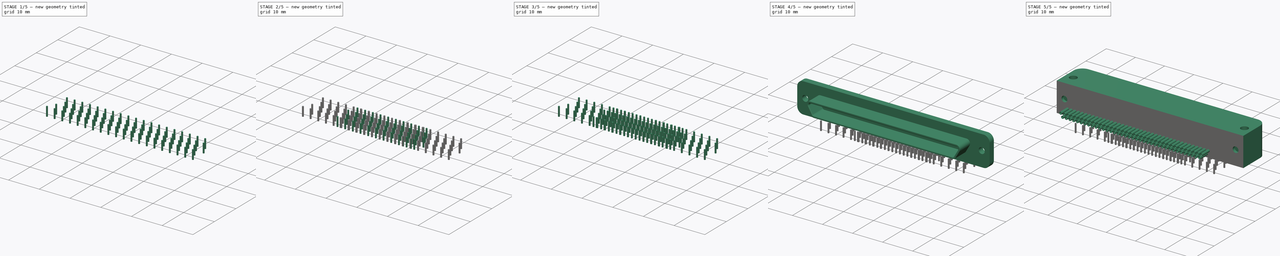
[diagram: build sequence overview — one tinted view per stage of 5, left to right]
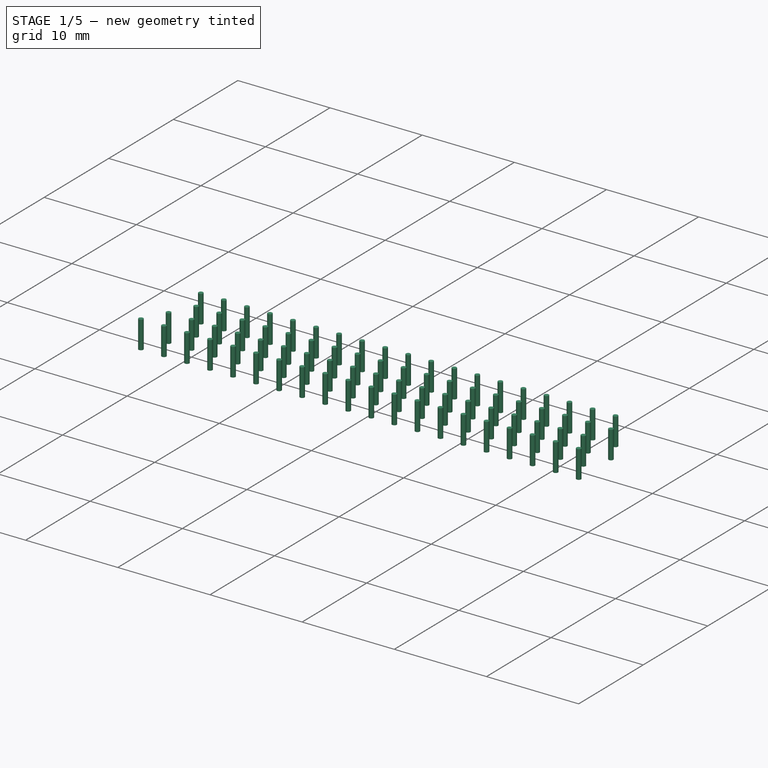
[diagram: stage 1 of 5 — iso view after this stage's code; geometry added in this stage tinted green]
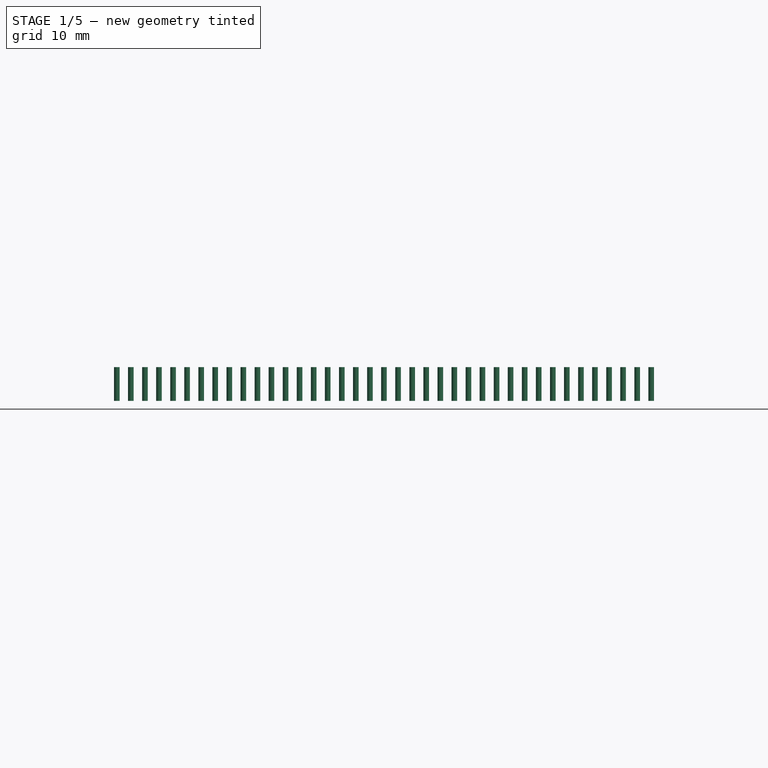
[diagram: stage 1 of 5 — front view after this stage's code; geometry added in this stage tinted green]
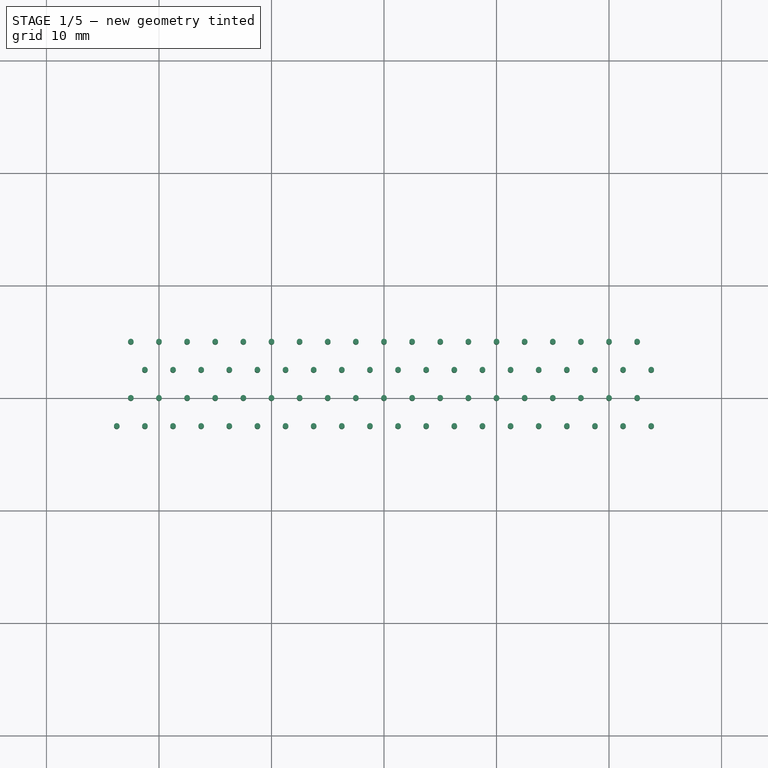
[diagram: stage 1 of 5 — top view after this stage's code; geometry added in this stage tinted green]
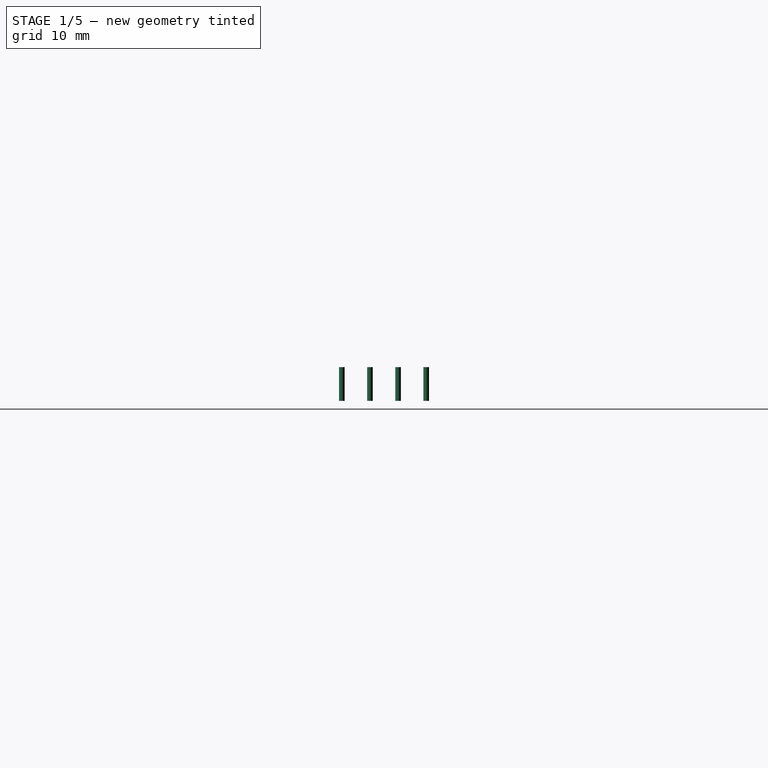
[diagram: stage 1 of 5 — right view after this stage's code; geometry added in this stage tinted green]
FCSTD DOCUMENT  (FreeCAD 1.0R38806 (Git))
Label: microD
License: All rights reserved
LicenseURL: http://en.wikipedia.org/wiki/All_rights_reserved
objects: Part::FeaturePython×19, Sketcher::SketchObject×10, Part::Part2DObjectPython×8, PartDesign::Pad×5, PartDesign::ShapeBinder×5, PartDesign::Pocket×5, PartDesign::Body×4, PartDesign::Fillet×2, PartDesign::Chamfer×2, Spreadsheet::Sheet×1, Part::Offset2D×1
note: 89 computed .brp shape members not serialized (recipe doc carries the construction recipe); baked Part::Feature solids carry a one-line shape summary decoded from their .brp

FEATURE [Sketcher::SketchObject] Sketch
  ArcFitTolerance = 0
  AttachmentSupport = -> [XY_Plane]
  FullyConstrained = true
  MakeInternals = false
  MapMode = 5
  expr: Constraints[8] = <<param>>.dimA
  expr: Constraints[9] = <<param>>.dimC - 2 mm - 4.9 mm
  sketch-geometry (4):
    g0: LineSegment StartX=-32 StartY=11.3 StartZ=0 EndX=32 EndY=11.3 EndZ=0
    g1: LineSegment StartX=32 StartY=11.3 StartZ=0 EndX=32 EndY=0 EndZ=0
    g2: LineSegment StartX=32 StartY=0 StartZ=0 EndX=-32 EndY=0 EndZ=0
    g3: LineSegment StartX=-32 StartY=0 StartZ=0 EndX=-32 EndY=11.3 EndZ=0
  constraints (11):
    c: Coincident(g0,g1)
    c: Coincident(g1,g2)
    c: Coincident(g2,g3)
    c: Coincident(g3,g0)
    c: Horizontal(g2)
    c: Vertical(g1)
    c: Vertical(g3)
    c: Symmetric(g0,g0,g-2)
    c: Distance(g2) = 64
    c: Distance(g3) = 11.3
    c: PointOnObject(g-1,g2)
FEATURE [PartDesign::Pad] Pad
  Direction = (0,0,1)
  Length = 10
  Length2 = 10
  Profile = -> Sketch
  ReferenceAxis = -> Sketch [N_Axis]
  Suppressed = false
  Type = 0
FEATURE [Sketcher::SketchObject] Sketch004
  ArcFitTolerance = 0
  AttachmentSupport = -> [Pad]
  ExternalGeometry = -> [Pad]
  FullyConstrained = true
  MakeInternals = false
  MapMode = 5
  Placement = pos=(0,0,0) rot=(1,0,0;1.5708rad)
  expr: Constraints[5] = <<param>>.dimF
  sketch-geometry (4):
    g0: Circle CenterX=29.35 CenterY=5 CenterZ=0 NormalX=0 NormalY=0 NormalZ=1 AngleXU=0 Radius=1
    g1: Circle CenterX=-29.35 CenterY=5 CenterZ=0 NormalX=0 NormalY=0 NormalZ=1 AngleXU=0 Radius=1
    g2: LineSegment [constr] StartX=-29.35 StartY=5 StartZ=0 EndX=29.35 EndY=5 EndZ=0
    g3: GeomPoint [constr] X=0 Y=10 Z=0
  constraints (8):
    c: Equal(g0,g1)
    c: Diameter(g0) = 2
    c: Symmetric(g1,g0,g-2)
    c: Coincident(g2,g1)
    c: Coincident(g2,g0)
    c: Distance(g2) = 58.7
    c: PointOnObject(g3,g-3)
    c: Symmetric(g3,g-1,g2)
FEATURE [PartDesign::Pocket] Pocket
  BaseFeature = -> Pad
  Direction = (0,1,-2e-16)
  Length = 1
  Length2 = 5
  Profile = -> Sketch004
  ReferenceAxis = -> Sketch004 [N_Axis]
  Suppressed = false
  Type = 0
FEATURE [Sketcher::SketchObject] Sketch006
  ArcFitTolerance = 0
  AttachmentSupport = -> [Pocket]
  FullyConstrained = true
  MakeInternals = false
  MapMode = 5
  Placement = pos=(0,0,0) rot=(1,0,0;3.14159rad)
  expr: Constraints[4] = <<param>>.MHSpacing
  expr: Constraints[7] = -<<param>>.MHOffset
  sketch-geometry (3):
    g0: Circle CenterX=29.35 CenterY=-4.35 CenterZ=0 NormalX=0 NormalY=0 NormalZ=1 AngleXU=0 Radius=1.25
    g1: Circle CenterX=-29.35 CenterY=-4.35 CenterZ=0 NormalX=0 NormalY=0 NormalZ=1 AngleXU=0 Radius=1.25
    g2: LineSegment [constr] StartX=-29.35 StartY=-4.35 StartZ=0 EndX=29.35 EndY=-4.35 EndZ=0
  constraints (8):
    c: Coincident(g2,g1)
    c: Coincident(g2,g0)
    c: Diameter(g0) = 2.5
    c: Equal(g0,g1)
    c: Distance(g2) = 58.7
    c: Distance(g-1,g2) = 4.35
    c: Horizontal(g2)
    c: DistanceX(g-2,g1) = -29.35
FEATURE [PartDesign::Pocket] Pocket002
  BaseFeature = -> Pocket
  Direction = (0,0,1)
  Length = 5
  Length2 = 5
  Profile = -> Sketch006
  ReferenceAxis = -> Sketch006 [N_Axis]
  Suppressed = false
  Type = 1
FEATURE [PartDesign::ShapeBinder] ShapeBinder002
  Support = -> [Pocket002]
  TraceSupport = false
FEATURE [Sketcher::SketchObject] Sketch007
  ArcFitTolerance = 0
  AttachmentSupport = -> [ShapeBinder002]
  ExternalGeometry = -> [ShapeBinder002]
  FullyConstrained = false
  MakeInternals = false
  MapMode = 5
  Placement = pos=(0,0,0) rot=(1,0,0;3.14159rad)
  sketch-geometry (2):
    g0: LineSegment [constr] StartX=-14.17 StartY=-4.35 StartZ=0 EndX=14.15 EndY=-4.35 EndZ=0
    g1: Circle CenterX=0 CenterY=-3.84 CenterZ=0 NormalX=0 NormalY=0 NormalZ=1 AngleXU=0 Radius=0.25
  constraints (3):
    c: PointOnObject(g1,g-2)
    c: Diameter(g1) = 0.5
    c: Distance(g1,g0) = 0.51
FEATURE [PartDesign::Pad] Pad003
  Direction = (0,0,-1)
  Length = 3
  Length2 = 10
  Profile = -> Sketch007
  ReferenceAxis = -> Sketch007 [N_Axis]
  Suppressed = false
  Type = 0
FEATURE [Part::Part2DObjectPython] Wire006  label="w_43p"  # Draft 2D object (typed FeaturePython)
  Area = 0
  ChamferSize = 0
  Closed = false
  End = (11.25,5,0)
  FilletRadius = 0
  Length = 171.631
  MakeFace = true
  Points = (43) [(-12.5,-2.5,0),(-10,-2.5,0),(-7.5,-2.5,0),(-5,-2.5,0),(-2.5,-2.5,0),(0,-2.5,0),(2.5,-2.5,0),(5,-2.5,0),(7.5,-2.5,0),(10,-2.5,0),(12.5,-2.5,0),+32 more]
  Start = (-12.5,-2.5,0)
  Subdivisions = 0
FEATURE [Part::FeaturePython] Clone007  label="solder_pin_43p"  # Draft clone (typed FeaturePython)
  AttacherType = Attacher::AttachEngine3D
  Fuse = false
  Objects = -> [Body002]
  Placement = pos=(0,-3.84,0) rot=(0,0,1;0rad)
  Scale = (1,1,1)
FEATURE [Part::Part2DObjectPython] Wire007  label="w_77p"  # Draft 2D object (typed FeaturePython)
  Area = 0
  ChamferSize = 0
  Closed = false
  End = (22.5,5,0)
  FilletRadius = 0
  Length = 318.956
  MakeFace = true
  Points = (77) [(-23.75,-2.5,0),(-21.25,-2.5,0),(-18.75,-2.5,0),(-16.25,-2.5,0),(-13.75,-2.5,0),(-11.25,-2.5,0),(-8.75,-2.5,0),(-6.25,-2.5,0),(-3.75,-2.5,0),+68 more]
  Start = (-23.75,-2.5,0)
  Subdivisions = 0
FEATURE [Part::FeaturePython] Clone008  label="solder_pin_77p"  # Draft clone (typed FeaturePython)
  AttacherType = Attacher::AttachEngine3D
  Fuse = false
  Objects = -> [Body002]
  Placement = pos=(0,-3.84,0) rot=(0,0,1;0rad)
  Scale = (1,1,1)
FEATURE [Part::FeaturePython] PointArray007  label="array_solder_77p"  # Draft array (typed FeaturePython)
  AlwaysSyncPlacement = false
  Base = -> Clone008
  Count = 77
  ExpandArray = false
  Fuse = false
  Placement = pos=(0,-3.84,0) rot=(0,0,1;0rad)
  PlacementList = 77 placements: [(-23.75,-2.5,0),(-21.25,-2.5,0),(-18.75,-2.5,0),(-16.25,-2.5,0),(-13.75,-2.5,0),(-11.25,-2.5,0),(-8.75,-2.5,0),(-6.25,-2.5,0),(-3.75,-2.5,0),(-1.25,-2.5,0),(1.25,-2.5,0),(3.75,-2.5,0),(6.25,-2.5,0),(8.75,-2.5,0),(11.25,-2.5,0),(13.75,-2.5,0),(16.25,-2.5,0),(18.75,-2.5,0),(21.25,-2.5,0),(23.75,-2.5,0),(-22.5,0,0),(-20,0,0),(-17.5,0,0),(-15,0,0),(-12.5,0,0),(-10,0,0),(-7.5,0,0),(-5,0,0),(-2.5,0,0),+48 more]
  PointObject = -> Wire007
  ScaleList = (77) [(1,1,1),(1,1,1),(1,1,1),(1,1,1),(1,1,1),(1,1,1),(1,1,1),(1,1,1),(1,1,1),(1,1,1),(1,1,1),(1,1,1),(1,1,1),(1,1,1),(1,1,1),(1,1,1),(1,1,1),(1,1,1),+59 more]
  expr: .Placement.Base.y = <<param>>.Shift
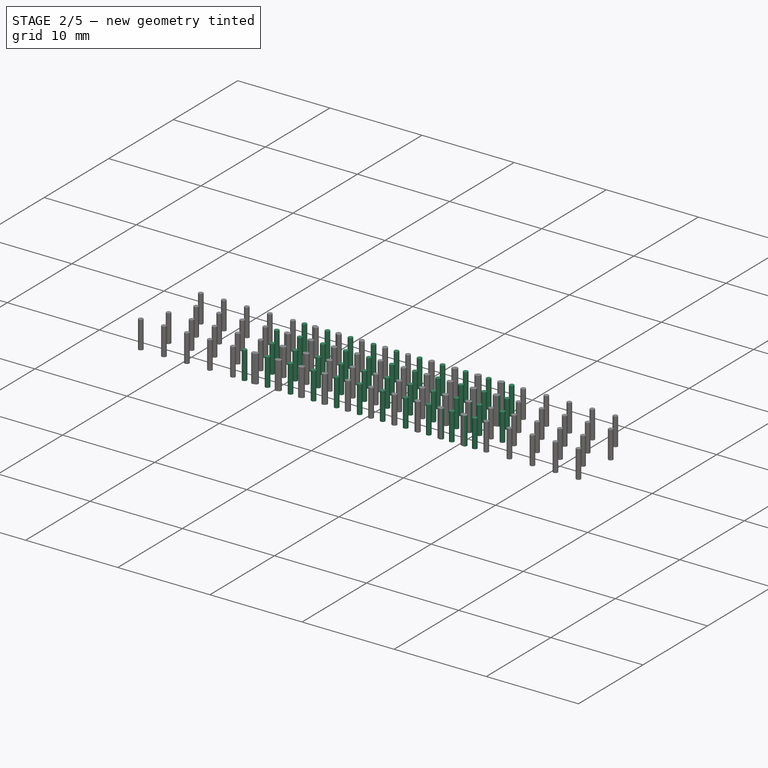
[diagram: stage 2 of 5 — iso view after this stage's code; geometry added in this stage tinted green]
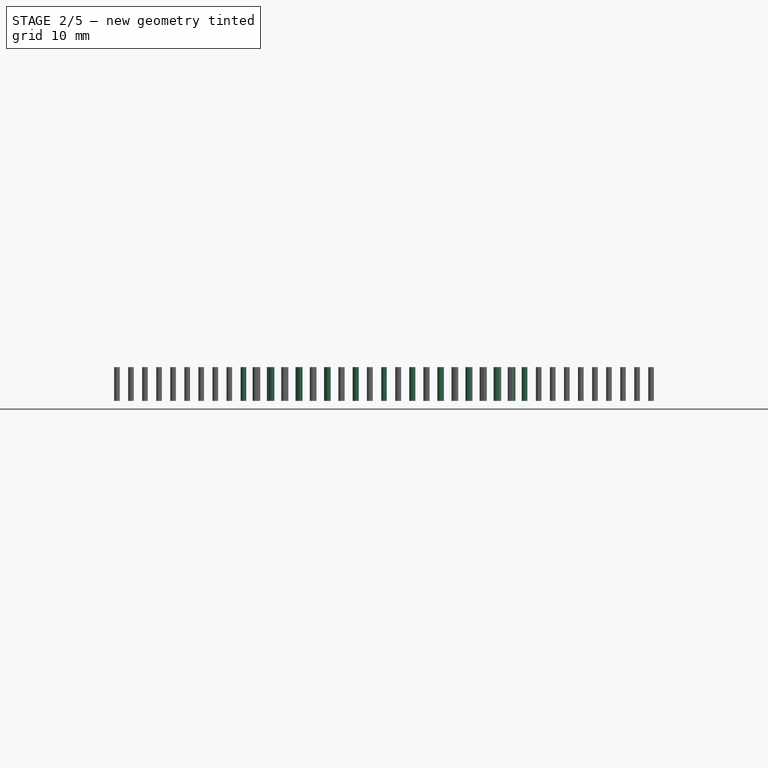
[diagram: stage 2 of 5 — front view after this stage's code; geometry added in this stage tinted green]
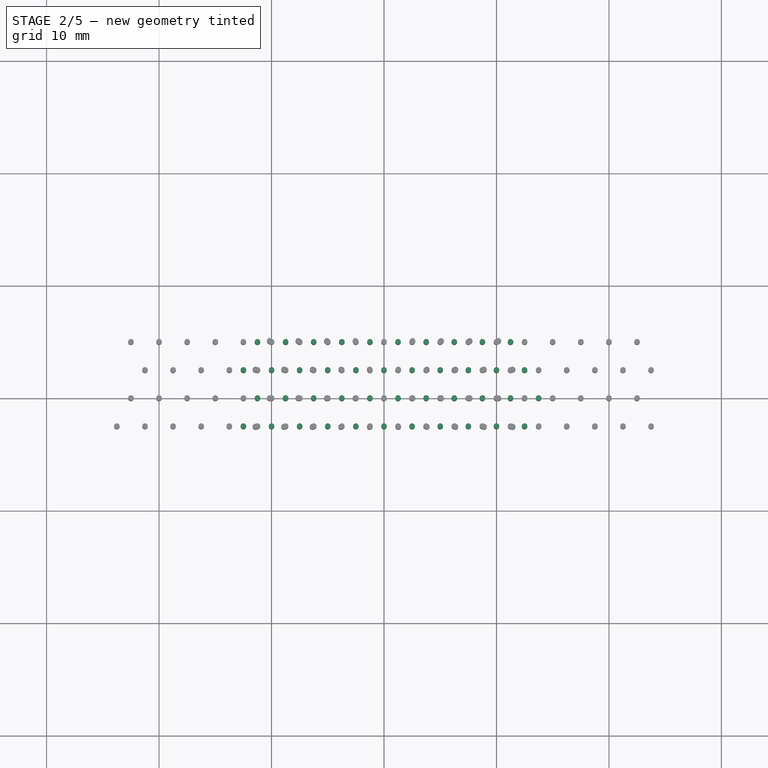
[diagram: stage 2 of 5 — top view after this stage's code; geometry added in this stage tinted green]
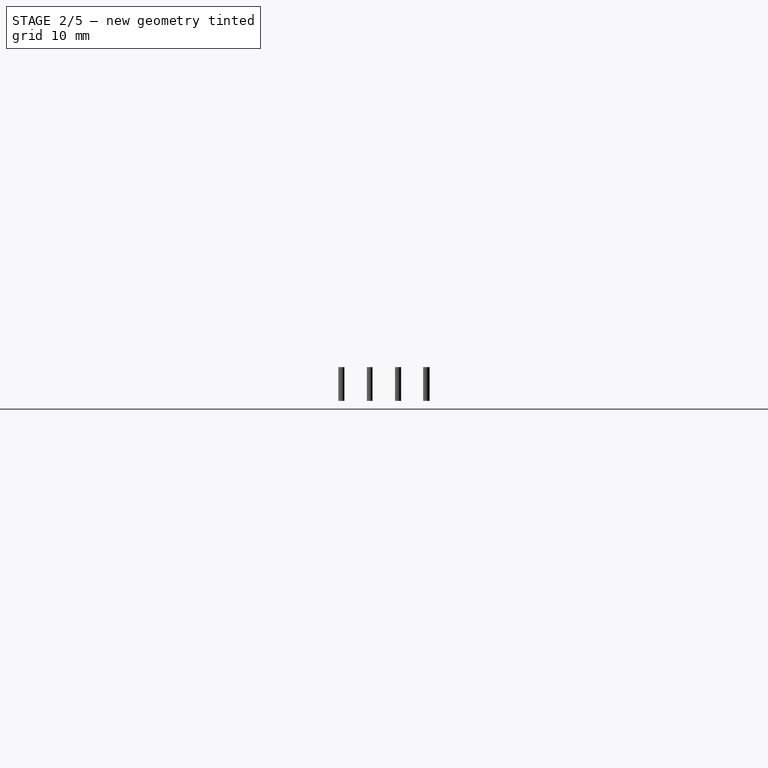
[diagram: stage 2 of 5 — right view after this stage's code; geometry added in this stage tinted green]
FEATURE [Part::Part2DObjectPython] Wire003  label="w_25p"  # Draft 2D object (typed FeaturePython)
  Area = 0
  ChamferSize = 0
  Closed = false
  End = (8.89,2.54,0)
  FilletRadius = 0
  Length = 94.3172
  MakeFace = true
  Points = (25) [(-8.89,-2.54,0),(-6.35,-2.54,0),(-3.81,-2.54,0),(-1.27,-2.54,0),(1.27,-2.54,0),(3.81,-2.54,0),(6.35,-2.54,0),(8.89,-2.54,0),(-10.16,0,0),(-7.62,0,0),+15 more]
  Start = (-8.89,-2.54,0)
  Subdivisions = 0
FEATURE [Part::FeaturePython] Clone004  label="solder_pin_25p"  # Draft clone (typed FeaturePython)
  AttacherType = Attacher::AttachEngine3D
  Fuse = false
  Objects = -> [Body002]
  Placement = pos=(0,-3.84,0) rot=(0,0,1;0rad)
  Scale = (1,1,1)
FEATURE [Part::Part2DObjectPython] Wire004  label="w_31p"  # Draft 2D object (typed FeaturePython)
  Area = 0
  ChamferSize = 0
  Closed = false
  End = (7.62,5.08,0)
  FilletRadius = 0
  Length = 126.261
  MakeFace = true
  Points = (31) [(-8.89,-2.54,0),(-6.35,-2.54,0),(-3.81,-2.54,0),(-1.27,-2.54,0),(1.27,-2.54,0),(3.81,-2.54,0),(6.35,-2.54,0),(8.89,-2.54,0),(-10.16,0,0),(-7.62,0,0),+21 more]
  Start = (-8.89,-2.54,0)
  Subdivisions = 0
FEATURE [Part::FeaturePython] Clone005  label="solder_pin_31p"  # Draft clone (typed FeaturePython)
  AttacherType = Attacher::AttachEngine3D
  Fuse = false
  Objects = -> [Body002]
  Placement = pos=(0,-3.84,0) rot=(0,0,1;0rad)
  Scale = (1,1,1)
FEATURE [Part::FeaturePython] PointArray004  label="array_solder_31p"  # Draft array (typed FeaturePython)
  AlwaysSyncPlacement = false
  Base = -> Clone005
  Count = 31
  ExpandArray = false
  Fuse = false
  Placement = pos=(0,-3.84,0) rot=(0,0,1;0rad)
  PlacementList = 31 placements: [(-8.89,-2.54,0),(-6.35,-2.54,0),(-3.81,-2.54,0),(-1.27,-2.54,0),(1.27,-2.54,0),(3.81,-2.54,0),(6.35,-2.54,0),(8.89,-2.54,0),(-10.16,0,0),(-7.62,0,0),(-5.08,0,0),(-2.54,0,0),(0,0,0),(2.54,0,0),(5.08,0,0),(7.62,0,0),(10.16,0,0),(-8.89,2.54,0),(-6.35,2.54,0),(-3.81,2.54,0),(-1.27,2.54,0),(1.27,2.54,0),(3.81,2.54,0),(6.35,2.54,0),(8.89,2.54,0),(-7.62,5.08,0),(-5.08,5.08,0),(-2.54,5.08,0),+3 more]
  PointObject = -> Wire004
  ScaleList = (31) [(1,1,1),(1,1,1),(1,1,1),(1,1,1),(1,1,1),(1,1,1),(1,1,1),(1,1,1),(1,1,1),(1,1,1),(1,1,1),(1,1,1),(1,1,1),(1,1,1),(1,1,1),(1,1,1),(1,1,1),(1,1,1),+13 more]
  expr: .Placement.Base.y = <<param>>.Shift
FEATURE [Part::Part2DObjectPython] Wire005  label="w_37p"  # Draft 2D object (typed FeaturePython)
  Area = 0
  ChamferSize = 0
  Closed = false
  End = (10.16,5.08,0)
  FilletRadius = 0
  Length = 151.577
  MakeFace = true
  Points = (37) [(-11.43,-2.54,0),(-8.89,-2.54,0),(-6.35,-2.54,0),(-3.81,-2.54,0),(-1.27,-2.54,0),(1.27,-2.54,0),(3.81,-2.54,0),(6.35,-2.54,0),(8.89,-2.54,0),+28 more]
  Start = (-11.43,-2.54,0)
  Subdivisions = 0
FEATURE [Part::FeaturePython] Clone006  label="solder_pin_37p"  # Draft clone (typed FeaturePython)
  AttacherType = Attacher::AttachEngine3D
  Fuse = false
  Objects = -> [Body002]
  Placement = pos=(0,-3.84,0) rot=(0,0,1;0rad)
  Scale = (1,1,1)
FEATURE [Part::FeaturePython] PointArray005  label="array_solder_37p"  # Draft array (typed FeaturePython)
  AlwaysSyncPlacement = false
  Base = -> Clone006
  Count = 37
  ExpandArray = false
  Fuse = false
  Placement = pos=(0,-3.84,0) rot=(0,0,1;0rad)
  PlacementList = 37 placements: [(-11.43,-2.54,0),(-8.89,-2.54,0),(-6.35,-2.54,0),(-3.81,-2.54,0),(-1.27,-2.54,0),(1.27,-2.54,0),(3.81,-2.54,0),(6.35,-2.54,0),(8.89,-2.54,0),(11.43,-2.54,0),(-10.16,0,0),(-7.62,0,0),(-5.08,0,0),(-2.54,0,0),(0,0,0),(2.54,0,0),(5.08,0,0),(7.62,0,0),(10.16,0,0),(-11.43,2.54,0),(-8.89,2.54,0),(-6.35,2.54,0),(-3.81,2.54,0),(-1.27,2.54,0),(1.27,2.54,0),(3.81,2.54,0),(6.35,2.54,0),(8.89,2.54,0),+9 more]
  PointObject = -> Wire005
  ScaleList = (37) [(1,1,1),(1,1,1),(1,1,1),(1,1,1),(1,1,1),(1,1,1),(1,1,1),(1,1,1),(1,1,1),(1,1,1),(1,1,1),(1,1,1),(1,1,1),(1,1,1),(1,1,1),(1,1,1),(1,1,1),(1,1,1),+19 more]
  expr: .Placement.Base.y = <<param>>.Shift
FEATURE [Part::FeaturePython] PointArray006  label="array_solder_43p"  # Draft array (typed FeaturePython)
  AlwaysSyncPlacement = false
  Base = -> Clone007
  Count = 43
  ExpandArray = false
  Fuse = false
  Placement = pos=(0,-3.84,0) rot=(0,0,1;0rad)
  PlacementList = 43 placements: [(-12.5,-2.5,0),(-10,-2.5,0),(-7.5,-2.5,0),(-5,-2.5,0),(-2.5,-2.5,0),(0,-2.5,0),(2.5,-2.5,0),(5,-2.5,0),(7.5,-2.5,0),(10,-2.5,0),(12.5,-2.5,0),(-11.25,0,0),(-8.75,0,0),(-6.25,0,0),(-3.75,0,0),(-1.25,0,0),(1.25,0,0),(3.75,0,0),(6.25,0,0),(8.75,0,0),(11.25,0,0),(13.75,0,0),(-12.5,2.5,0),(-10,2.5,0),(-7.5,2.5,0),(-5,2.5,0),(-2.5,2.5,0),(0,2.5,0),(2.5,2.5,0),(5,2.5,0),(7.5,2.5,0),(10,2.5,0),+11 more]
  PointObject = -> Wire006
  ScaleList = (43) [(1,1,1),(1,1,1),(1,1,1),(1,1,1),(1,1,1),(1,1,1),(1,1,1),(1,1,1),(1,1,1),(1,1,1),(1,1,1),(1,1,1),(1,1,1),(1,1,1),(1,1,1),(1,1,1),(1,1,1),(1,1,1),+25 more]
  expr: .Placement.Base.y = <<param>>.Shift
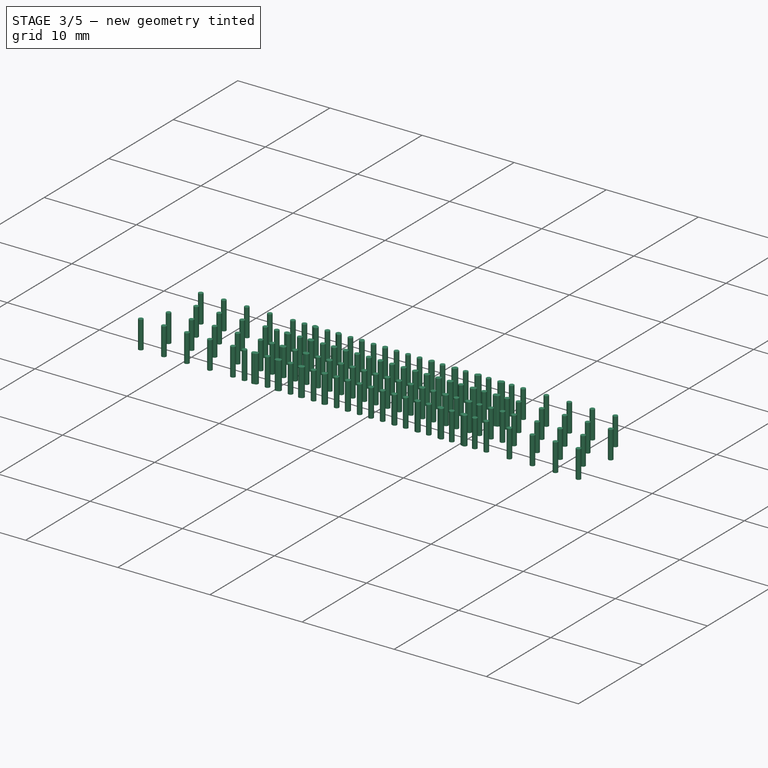
[diagram: stage 3 of 5 — iso view after this stage's code; geometry added in this stage tinted green]
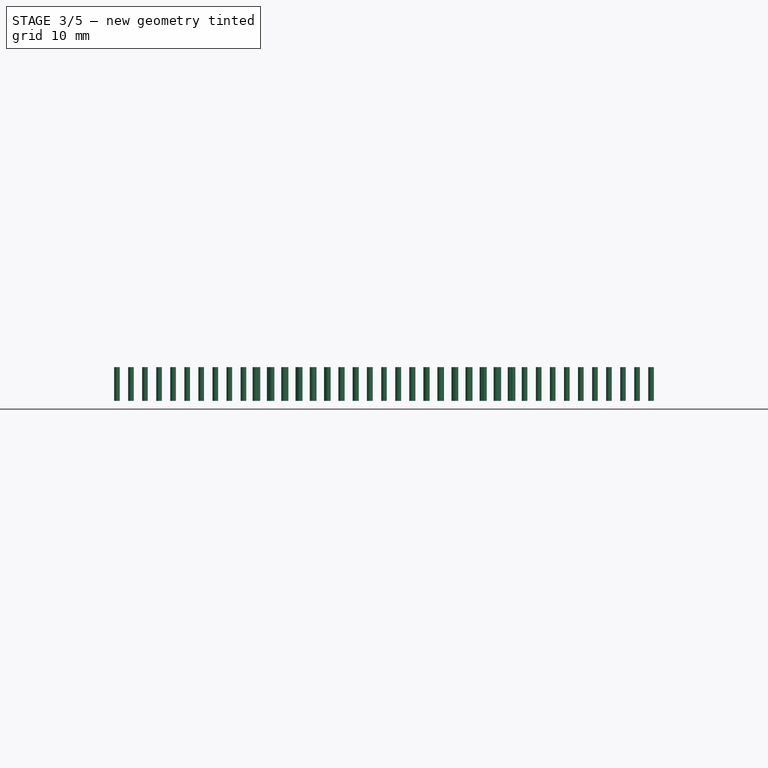
[diagram: stage 3 of 5 — front view after this stage's code; geometry added in this stage tinted green]
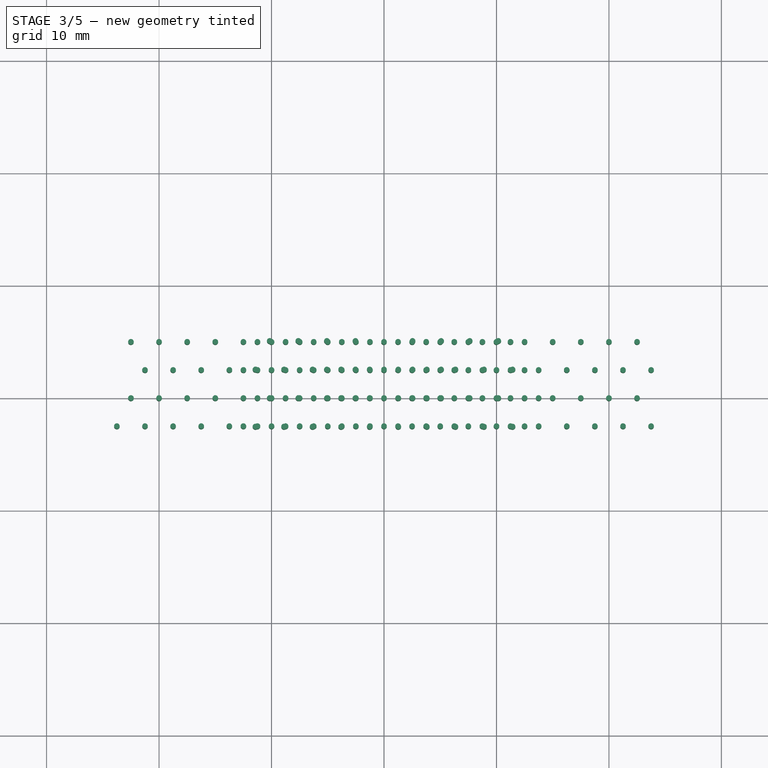
[diagram: stage 3 of 5 — top view after this stage's code; geometry added in this stage tinted green]
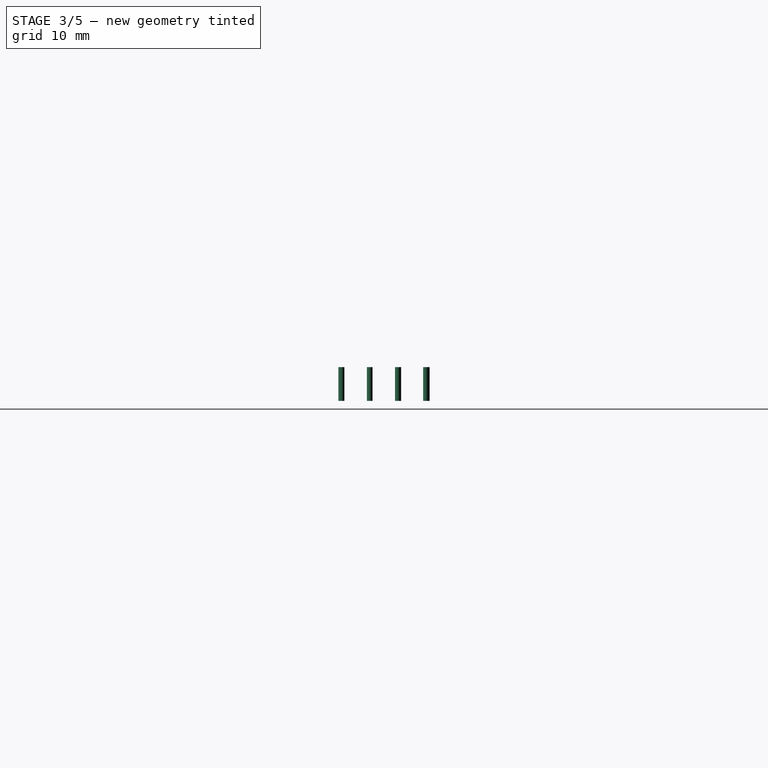
[diagram: stage 3 of 5 — right view after this stage's code; geometry added in this stage tinted green]
FEATURE [Part::FeaturePython] Clone001  label="solder_pin_9p"  # Draft clone (typed FeaturePython)
  AttacherType = Attacher::AttachEngine3D
  Fuse = false
  Objects = -> [Body002]
  Placement = pos=(-3.75,-3.84,0) rot=(0,0,1;0rad)
  Scale = (1,1,1)
  expr: .Placement.Base.x = -<<param>>.FPSpacing * 1.5
  expr: .Placement.Base.y = <<param>>.Shift
FEATURE [Part::Part2DObjectPython] Wire  label="w_9p"  # Draft 2D object (typed FeaturePython)
  Area = 0
  ChamferSize = 0
  Closed = false
  End = (5.08,2.54,0)
  FilletRadius = 0
  Length = 27.0257
  MakeFace = true
  Points = (9) [(-3.81,0,0),(-1.27,0,0),(1.27,0,0),(3.81,0,0),(-5.08,2.54,0),(-2.54,2.54,0),(0,2.54,0),(2.54,2.54,0),(5.08,2.54,0)]
  Start = (-3.81,0,0)
  Subdivisions = 0
FEATURE [Part::FeaturePython] PointArray  label="array_solder_9p"  # Draft array (typed FeaturePython)
  AlwaysSyncPlacement = false
  Base = -> Clone001
  Count = 9
  ExpandArray = false
  Fuse = false
  Placement = pos=(0,-3.84,0) rot=(0,0,1;0rad)
  PlacementList = 9 placements: [(-3.81,0,0),(-1.27,0,0),(1.27,0,0),(3.81,0,0),(-5.08,2.54,0),(-2.54,2.54,0),(0,2.54,0),(2.54,2.54,0),(5.08,2.54,0)]
  PointObject = -> Wire
  ScaleList = (9) [(1,1,1),(1,1,1),(1,1,1),(1,1,1),(1,1,1),(1,1,1),(1,1,1),(1,1,1),(1,1,1)]
  expr: .Placement.Base.y = <<param>>.Shift
FEATURE [Part::Part2DObjectPython] Wire001  label="w_15p"  # Draft 2D object (typed FeaturePython)
  Area = 0
  ChamferSize = 0
  Closed = false
  End = (6.35,2.54,0)
  FilletRadius = 0
  Length = 51.4346
  MakeFace = true
  Points = (15) [(-3.81,-2.54,0),(-1.27,-2.54,0),(1.27,-2.54,0),(3.81,-2.54,0),(-5.08,0,0),(-2.54,0,0),(0,0,0),(2.54,0,0),(5.08,0,0),(-6.35,2.54,0),(-3.81,2.54,0),+4 more]
  Start = (-3.81,-2.54,0)
  Subdivisions = 0
FEATURE [Part::FeaturePython] Clone002  label="solder_pin_15p"  # Draft clone (typed FeaturePython)
  AttacherType = Attacher::AttachEngine3D
  Fuse = false
  Objects = -> [Body002]
  Placement = pos=(0,-3.84,0) rot=(0,0,1;0rad)
  Scale = (1,1,1)
FEATURE [Part::FeaturePython] PointArray001  label="array_solder_15p"  # Draft array (typed FeaturePython)
  AlwaysSyncPlacement = false
  Base = -> Clone002
  Count = 15
  ExpandArray = false
  Fuse = false
  Placement = pos=(0,-3.84,0) rot=(0,0,1;0rad)
  PlacementList = 15 placements: [(-3.81,-2.54,0),(-1.27,-2.54,0),(1.27,-2.54,0),(3.81,-2.54,0),(-5.08,-2.22045e-16,0),(-2.54,0,0),(0,0,0),(2.54,0,0),(5.08,0,0),(-6.35,2.54,0),(-3.81,2.54,0),(-1.27,2.54,0),(1.27,2.54,0),(3.81,2.54,0),(6.35,2.54,0)]
  PointObject = -> Wire001
  ScaleList = (15) [(1,1,1),(1,1,1),(1,1,1),(1,1,1),(1,1,1),(1,1,1),(1,1,1),(1,1,1),(1,1,1),(1,1,1),(1,1,1),(1,1,1),(1,1,1),(1,1,1),(1,1,1)]
  expr: .Placement.Base.y = <<param>>.Shift
FEATURE [Part::Part2DObjectPython] Wire002  label="w_21p"  # Draft 2D object (typed FeaturePython)
  Area = 0
  ChamferSize = 0
  Closed = false
  End = (8.89,2.54,0)
  FilletRadius = 0
  Length = 76.6233
  MakeFace = true
  Points = (21) [(-6.35,-2.54,0),(-3.81,-2.54,0),(-1.27,-2.54,0),(1.27,-2.54,0),(3.81,-2.54,0),(6.35,-2.54,0),(-7.62,0,0),(-5.08,0,0),(-2.54,0,0),(0,0,0),(2.54,0,0),+10 more]
  Start = (-6.35,-2.54,0)
  Subdivisions = 0
FEATURE [Part::FeaturePython] Clone003  label="solder_pin_21p"  # Draft clone (typed FeaturePython)
  AttacherType = Attacher::AttachEngine3D
  Fuse = false
  Objects = -> [Body002]
  Placement = pos=(0,-3.84,0) rot=(0,0,1;0rad)
  Scale = (1,1,1)
FEATURE [Part::FeaturePython] PointArray002  label="array_solder_21p"  # Draft array (typed FeaturePython)
  AlwaysSyncPlacement = false
  Base = -> Clone003
  Count = 21
  ExpandArray = false
  Fuse = false
  Placement = pos=(0,-3.84,0) rot=(0,0,1;0rad)
  PlacementList = 21 placements: [(-6.35,-2.54,0),(-3.81,-2.54,0),(-1.27,-2.54,0),(1.27,-2.54,0),(3.81,-2.54,0),(6.35,-2.54,0),(-7.62,0,0),(-5.08,0,0),(-2.54,0,0),(0,0,0),(2.54,0,0),(5.08,0,0),(7.62,0,0),(-8.89,2.54,0),(-6.35,2.54,0),(-3.81,2.54,0),(-1.27,2.54,0),(1.27,2.54,0),(3.81,2.54,0),(6.35,2.54,0),(8.89,2.54,0)]
  PointObject = -> Wire002
  ScaleList = (21) [(1,1,1),(1,1,1),(1,1,1),(1,1,1),(1,1,1),(1,1,1),(1,1,1),(1,1,1),(1,1,1),(1,1,1),(1,1,1),(1,1,1),(1,1,1),(1,1,1),(1,1,1),(1,1,1),(1,1,1),(1,1,1),+3 more]
  expr: .Placement.Base.y = <<param>>.Shift
FEATURE [Part::FeaturePython] PointArray003  label="array_solder_25p"  # Draft array (typed FeaturePython)
  AlwaysSyncPlacement = false
  Base = -> Clone004
  Count = 25
  ExpandArray = false
  Fuse = false
  Placement = pos=(0,-3.84,0) rot=(0,0,1;0rad)
  PlacementList = 25 placements: [(-8.89,-2.54,0),(-6.35,-2.54,0),(-3.81,-2.54,0),(-1.27,-2.54,0),(1.27,-2.54,0),(3.81,-2.54,0),(6.35,-2.54,0),(8.89,-2.54,0),(-10.16,0,0),(-7.62,0,0),(-5.08,0,0),(-2.54,0,0),(0,0,0),(2.54,0,0),(5.08,0,0),(7.62,0,0),(10.16,0,0),(-8.89,2.54,0),(-6.35,2.54,0),(-3.81,2.54,0),(-1.27,2.54,0),(1.27,2.54,0),(3.81,2.54,0),(6.35,2.54,0),(8.89,2.54,0)]
  PointObject = -> Wire003
  ScaleList = (25) [(1,1,1),(1,1,1),(1,1,1),(1,1,1),(1,1,1),(1,1,1),(1,1,1),(1,1,1),(1,1,1),(1,1,1),(1,1,1),(1,1,1),(1,1,1),(1,1,1),(1,1,1),(1,1,1),(1,1,1),(1,1,1),+7 more]
  expr: .Placement.Base.y = <<param>>.Shift
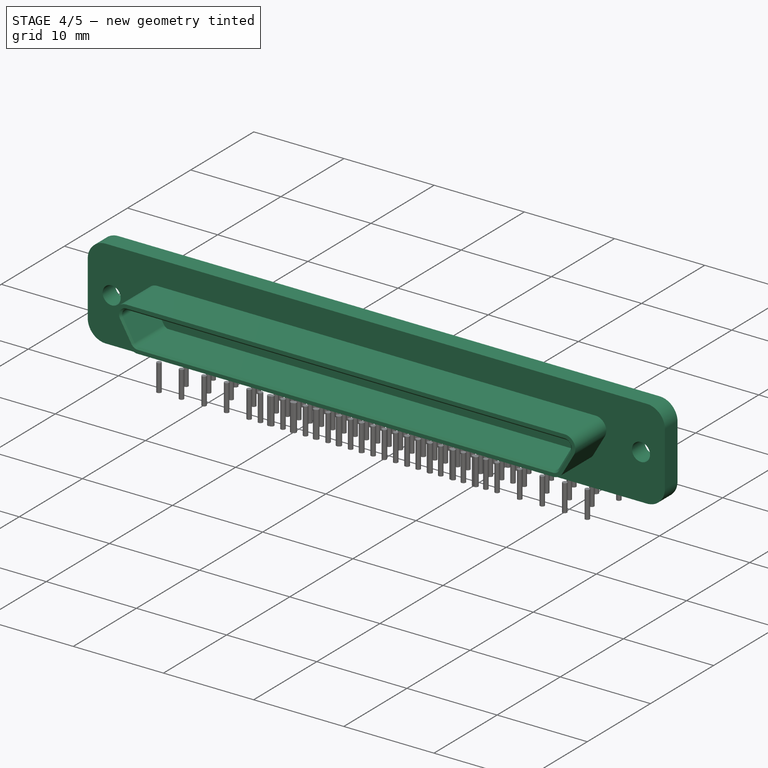
[diagram: stage 4 of 5 — iso view after this stage's code; geometry added in this stage tinted green]
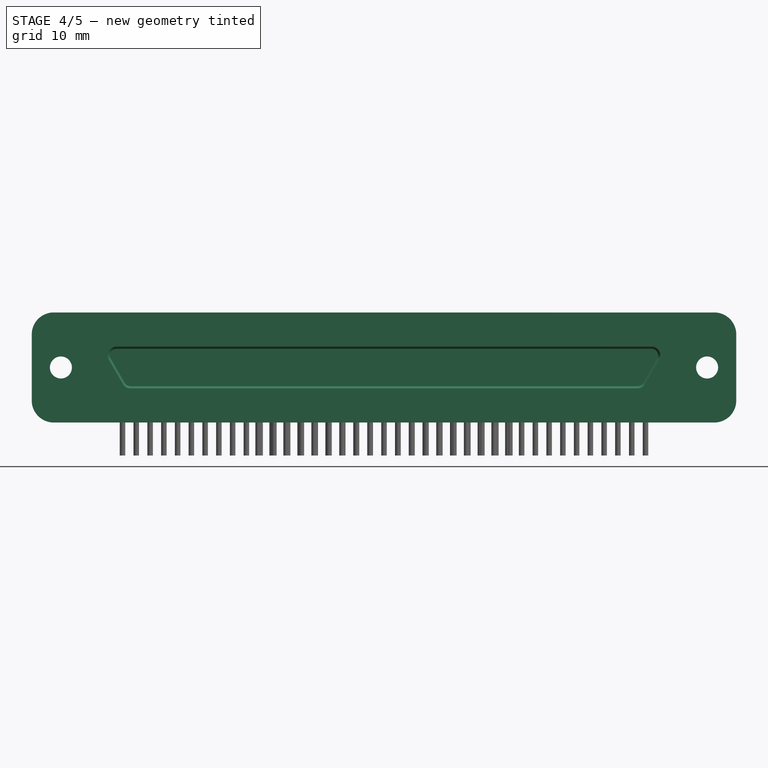
[diagram: stage 4 of 5 — front view after this stage's code; geometry added in this stage tinted green]
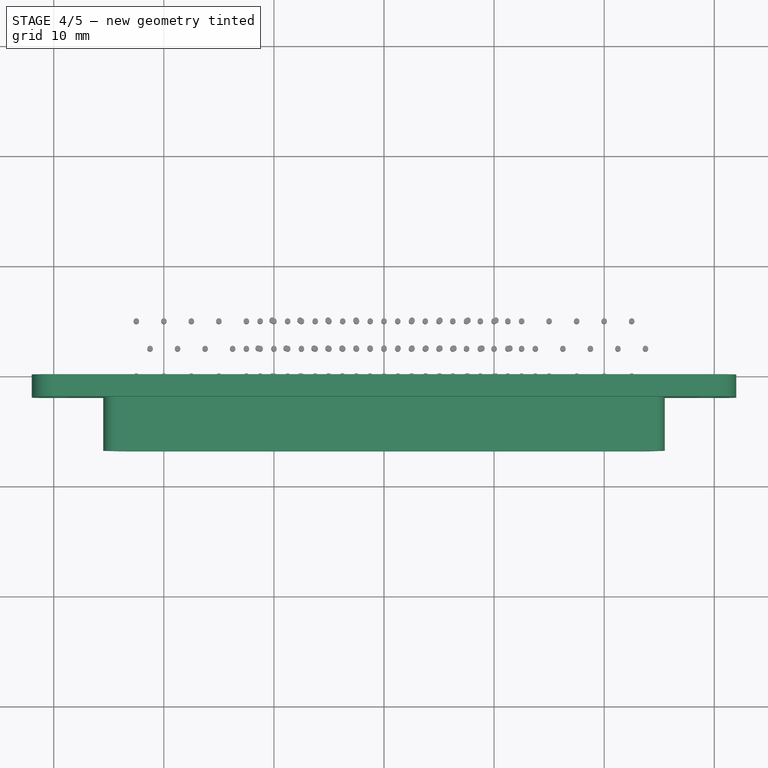
[diagram: stage 4 of 5 — top view after this stage's code; geometry added in this stage tinted green]
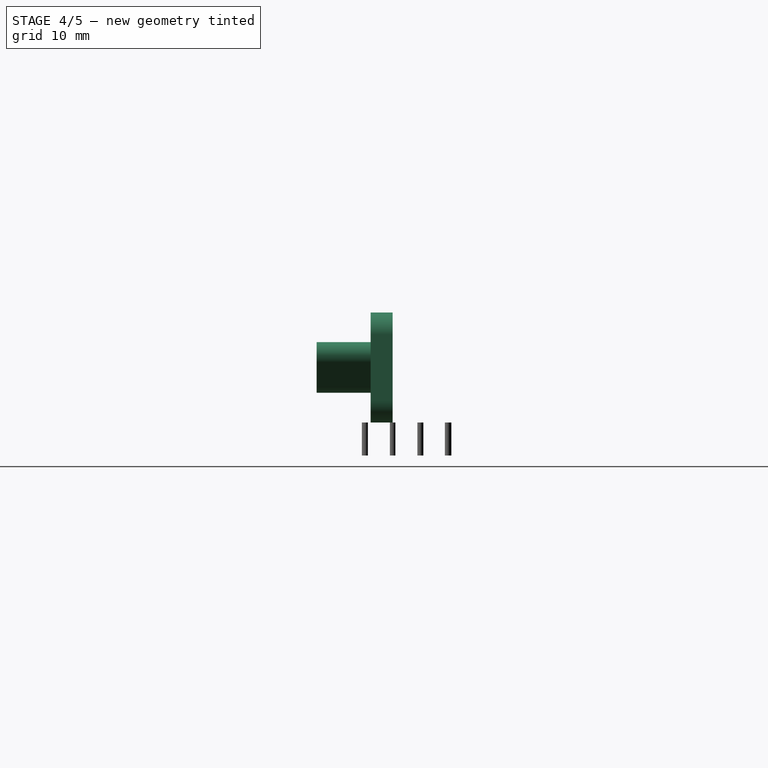
[diagram: stage 4 of 5 — right view after this stage's code; geometry added in this stage tinted green]
FEATURE [PartDesign::ShapeBinder] ShapeBinder
  Support = -> [Pad]
  TraceSupport = false
FEATURE [Sketcher::SketchObject] Sketch002
  ArcFitTolerance = 0
  AttachmentSupport = -> [ShapeBinder]
  ExternalGeometry = -> [ShapeBinder]
  FullyConstrained = true
  MakeInternals = false
  MapMode = 5
  Placement = pos=(0,0,0) rot=(1,0,0;1.5708rad)
  sketch-geometry (4):
    g0: LineSegment StartX=-32 StartY=10 StartZ=0 EndX=32 EndY=10 EndZ=0
    g1: LineSegment StartX=32 StartY=10 StartZ=0 EndX=32 EndY=0 EndZ=0
    g2: LineSegment StartX=32 StartY=0 StartZ=0 EndX=-32 EndY=0 EndZ=0
    g3: LineSegment StartX=-32 StartY=0 StartZ=0 EndX=-32 EndY=10 EndZ=0
  constraints (10):
    c: Coincident(g0,g1)
    c: Coincident(g1,g2)
    c: Coincident(g2,g3)
    c: Coincident(g3,g0)
    c: Horizontal(g0)
    c: Horizontal(g2)
    c: Vertical(g1)
    c: Vertical(g3)
    c: Coincident(g0,g-4)
    c: Coincident(g1,g-5)
FEATURE [PartDesign::Pad] Pad001
  Direction = (0,-1,2e-16)
  Length = 2
  Length2 = 10
  Profile = -> Sketch002
  ReferenceAxis = -> Sketch002 [N_Axis]
  Suppressed = false
  Type = 0
FEATURE [PartDesign::Fillet] Fillet
  Base = -> Pad001 [Edge1,Edge2,Edge5,Edge8]
  BaseFeature = -> Pad001
  Radius = 2
  SupportTransform = false
  Suppressed = false
  UseAllEdges = false
FEATURE [Sketcher::SketchObject] Sketch003
  ArcFitTolerance = 0
  AttachmentSupport = -> [Fillet]
  ExternalGeometry = -> [Fillet]
  FullyConstrained = false
  MakeInternals = false
  MapMode = 5
  Placement = pos=(0,-2,0) rot=(1,0,0;1.5708rad)
  expr: Constraints[20] = <<param>>.dimG
  expr: Constraints[25] = <<param>>.dimB
  sketch-geometry (15):
    g0: LineSegment StartX=0 StartY=7.3 StartZ=0 EndX=24.3 EndY=7.3 EndZ=0
    g1: LineSegment StartX=25.3392 StartY=5.5 StartZ=0 EndX=24.0691 EndY=3.3 EndZ=0
    g2: LineSegment StartX=23.0298 StartY=2.7 StartZ=0 EndX=0 EndY=2.7 EndZ=0
    g3: LineSegment StartX=0 StartY=2.7 StartZ=0 EndX=-23.0298 EndY=2.7 EndZ=0
    g4: LineSegment StartX=-24.0691 StartY=3.3 StartZ=0 EndX=-25.3392 EndY=5.5 EndZ=0
    g5: LineSegment StartX=-24.3 StartY=7.3 StartZ=0 EndX=0 EndY=7.3 EndZ=0
    g6: ArcOfCircle CenterX=-24.3 CenterY=6.1 CenterZ=0 NormalX=0 NormalY=0 NormalZ=1 AngleXU=0 Radius=1.2 StartAngle=1.5708 EndAngle=3.66519
    g7: ArcOfCircle CenterX=24.3 CenterY=6.1 CenterZ=0 NormalX=0 NormalY=0 NormalZ=1 AngleXU=0 Radius=1.2 StartAngle=5.75959 EndAngle=7.85398
    g8: ArcOfCircle CenterX=23.0298 CenterY=3.9 CenterZ=0 NormalX=0 NormalY=0 NormalZ=1 AngleXU=0 Radius=1.2 StartAngle=4.71239 EndAngle=5.75959
    g9: ArcOfCircle CenterX=-23.0298 CenterY=3.9 CenterZ=0 NormalX=0 NormalY=0 NormalZ=1 AngleXU=0 Radius=1.2 StartAngle=3.66519 EndAngle=4.71239
    g10: LineSegment [constr] StartX=-25.5 StartY=6.1 StartZ=0 EndX=-25.5 EndY=1.8001 EndZ=0
    g11: LineSegment [constr] StartX=25.5 StartY=6.1 StartZ=0 EndX=25.5 EndY=1.67914 EndZ=0
    g12: LineSegment [constr] StartX=0 StartY=7.3 StartZ=0 EndX=0 EndY=2.7 EndZ=0
    g13: LineSegment [constr] StartX=0 StartY=5 StartZ=0 EndX=25.0506 EndY=5 EndZ=0
    g14: GeomPoint [constr] X=0 Y=10 Z=0
  constraints (34):
    c: PointOnObject(g0,g-2)
    c: PointOnObject(g2,g-2)
    c: Coincident(g3,g2)
    c: Coincident(g5,g0)
    c: Tangent(g4,g6) = 1.5708
    c: Tangent(g5,g6) = 1.5708
    c: Tangent(g0,g7) = 1.5708
    c: Tangent(g1,g7) = 1.5708
    c: Tangent(g2,g8) = 1.5708
    c: Tangent(g1,g8) = 1.5708
    c: Tangent(g4,g9) = 1.5708
    c: Tangent(g3,g9) = 1.5708
    c: Equal(g6,g9)
    c: Equal(g9,g8)
    c: Equal(g8,g7)
    c: Radius(g7) = 1.2
    c: Symmetric(g6,g7,g-2)
    c: Horizontal(g5)
    c: Symmetric(g8,g9,g-2)
    c: Horizontal(g3)
    c: Distance(g0,g2) = 4.6
    c: Vertical(g10)
    c: Vertical(g11)
    c: Tangent(g10,g6) = -1.5708
    c: Tangent(g11,g7) = 1.5708
    c: Distance(g10,g11) = 51
    c: Angle(g1,g-2) = 0.523599
    c: Coincident(g12,g0)
    c: Coincident(g12,g2)
    c: PointOnObject(g13,g12)
    c: PointOnObject(g13,g1)
    c: Symmetric(g0,g2,g13)
    c: PointOnObject(g14,g-3)
    c: Symmetric(g14,g-1,g13)
FEATURE [PartDesign::Pad] Pad002
  BaseFeature = -> Fillet
  Direction = (0,-1,2e-16)
  Length = 4.9
  Length2 = 10
  Profile = -> Sketch003
  ReferenceAxis = -> Sketch003 [N_Axis]
  Suppressed = false
  Type = 0
FEATURE [PartDesign::ShapeBinder] ShapeBinder001
  Support = -> [Pocket]
  TraceSupport = false
FEATURE [Sketcher::SketchObject] Sketch005
  ArcFitTolerance = 0
  AttachmentSupport = -> [Pad002]
  ExternalGeometry = -> [ShapeBinder001]
  FullyConstrained = true
  MakeInternals = false
  MapMode = 5
  Placement = pos=(0,1.1e-15,0) rot=(0,0.707107,0.707107;3.14159rad)
  sketch-geometry (2):
    g0: Circle CenterX=-29.35 CenterY=5 CenterZ=0 NormalX=0 NormalY=0 NormalZ=1 AngleXU=0 Radius=1
    g1: Circle CenterX=29.35 CenterY=5 CenterZ=0 NormalX=0 NormalY=0 NormalZ=1 AngleXU=0 Radius=1
  constraints (4):
    c: Coincident(g0,g-3)
    c: Equal(g0,g-3)
    c: Symmetric(g0,g1,g-2)
    c: Equal(g0,g1)
FEATURE [PartDesign::Pocket] Pocket001
  BaseFeature = -> Pad002
  Direction = (0,-1,2e-16)
  Length = 5
  Length2 = 5
  Profile = -> Sketch005
  ReferenceAxis = -> Sketch005 [N_Axis]
  Suppressed = false
  Type = 1
FEATURE [PartDesign::Body] Body  label="base"
  AllowCompound = false
  Configuration = 7
  Group = -> [Sketch,Pad,Sketch004,Pocket,Sketch006,Pocket002,Fillet001]
  Origin = -> Origin
  Placement = pos=(0,-3.84,0) rot=(0,0,1;0rad)
  Tip = -> Fillet001
  expr: .Configuration.Enum = Spreadsheet.cells[<<A3:|>>]
  expr: .Placement.Base.y = <<param>>.Shift
FEATURE [Spreadsheet::Sheet] Spreadsheet  label="param"
  cells = A1='Variant; B1='Shift; C1='dimA; D1='dimB; E1='dimC; F1='dimE; G1='dimF; H1='dimG; I1='dimH; J1='dimJ; K1='JackPins; L1='MHSpacing; M1='MHOffset; N1='FPSpacing; O1='a9_visible; A2==hiddenref(Body.Configuration.String); B2(Shift)==.B10; C2(dimA)==.C10; D2(dimB)==.D10; E2(dimC)==.E10; F2(dimE)==.F10; G2(dimF)==.G10; H2(dimG)==.H10; I2(dimH)==.I10; J2(dimJ)==.J10; K2(JackPins)==.K10; L2(MHSpacing)==.L10; M2(MHOffset)==.M10; N2(FPSpacing)==.N10; O2(a9_visible)==.O10; A3='9p; B3=-3.84; C3=19.7; D3==8.45 mm; E3==15.8 mm; F3==7.8 mm; G3==14.4 mm; H3==4.6 mm; I3==5.84 mm; J3==6.35 mm; K3=5; L3=14.35; M3==2.11 + N2 * 2; N3=2.54; O3=1; A4='15p; B4=-3.84; C4=23.7; D4==12.25 mm; E4==15.8 mm; F4==7.8 mm; G4==18.2 mm; H4==4.6 mm; I4==3.3 mm; J4==6.35 mm; K4=8; L4=18.16; M4==2.74 + N3 * 2.5; N4=2.54; O4=0; A5='21p; B5=-3.84; C5=27.3; D5==16.1 mm; E5==15.8 mm; F5==7.8 mm; G5==22 mm; H5==4.6 mm; I5==3.3 mm; J5==6.35 mm; K5=11; L5=21.97; M5==2.11 + N4 * 3.5; N5=2.54; O5=0; A6='25p; B6=-3.84; C6=29.8; D6==18.6 mm; E6==15.8 mm; F6==7.8 mm; G6==24.5 mm; H6==4.6 mm; I6==3.3 mm; J6==6.35 mm; K6=13; L6=24.51; M6==2.11 + N5 * 4; N6=2.54; O6=0; A7='31p; B7=-3.84; C7=33.7; D7==22.4 mm; E7==18.2 mm; F7==7.8 mm; G7==28.4 mm; H7==4.6 mm; I7==3.3 mm; J7==6.35 mm; K7=16; L7=28.32; M7==4.01 + N6 * 4; N7=2.54; O7=0; A8='37p; B8=-3.84; C8=37.7; D8==26.2 mm; E8==18.2 mm; F8==7.8 mm; G8==32.2 mm; H8==4.6 mm; I8==3.3 mm; J8==6.35 mm; K8=19; L8=32.13; M8==4.65 + N7 * 4.5; N8=2.54; O8=0; A9='43p; B9=-3.84; C9=43; D9==30.1 mm; E9==18.2 mm; F9==8 mm; G9==38.5 mm; H9==4.7 mm; I9==3.3 mm; J9==6.5 mm; K9=22; L9=38.5; M9==6.5 + N8 * 5; N9=2.5; O9=0; A10='77p; B10=-3.84; C10=64; D10==51 mm; E10==18.2 mm; F10==8.4 mm; G10==58.7 mm; H10==4.6 mm; I10==3.3 mm; J10==6.5 mm; K10=39; L10=58.7; M10==5.6 + N9 * 9.5; N10=2.5; O10=0
  expr: .cells.Bind.B2.ZZ2 = tuple(.cells; <<B>> + str(hiddenref(Body.Configuration) + 3); <<ZZ>> + str(hiddenref(Body.Configuration) + 3))
FEATURE [PartDesign::ShapeBinder] ShapeBinder003
  Placement = pos=(0,-4.9,1.1e-15) rot=(0,0,1;0rad)
  Support = -> [Pocket001]
  TraceSupport = false
FEATURE [Part::Offset2D] Offset2D
  Fill = false
  Intersection = false
  Join = 0
  Mode = 1
  SelfIntersection = false
  Source = -> ShapeBinder003
  Value = -0.6
FEATURE [PartDesign::Pocket] Pocket003
  BaseFeature = -> Pocket001
  Direction = (0,1,0)
  Length = 4.9
  Length2 = 5
  Profile = -> Offset2D
  Suppressed = false
  Type = 0
FEATURE [PartDesign::Chamfer] Chamfer
  Angle = 45
  Base = -> Pocket003 [Edge64]
  BaseFeature = -> Pocket003
  ChamferType = 0
  FlipDirection = false
  Size = 0.2
  Size2 = 1
  SupportTransform = false
  Suppressed = false
  UseAllEdges = false
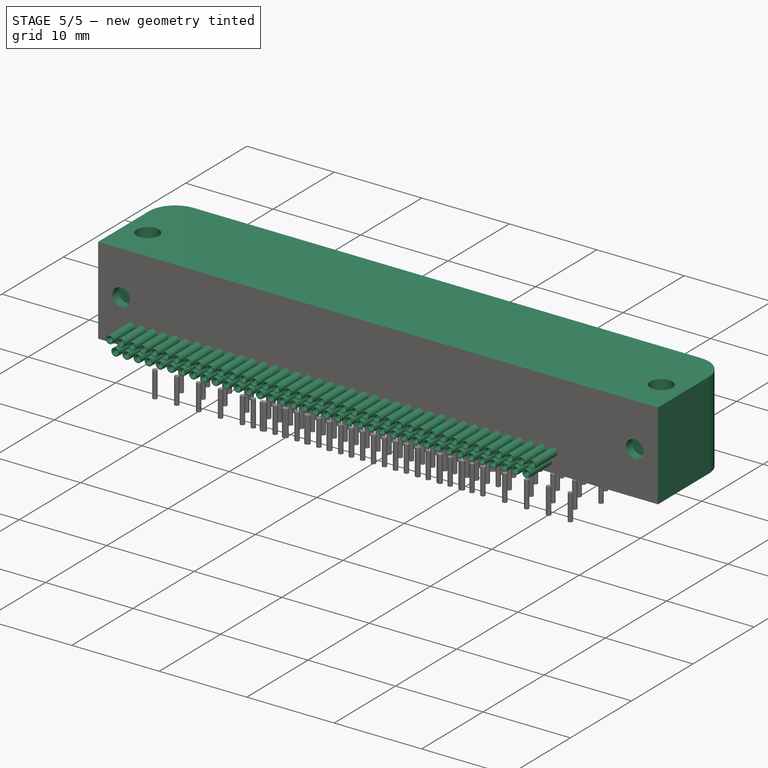
[diagram: stage 5 of 5 — iso view after this stage's code; geometry added in this stage tinted green]
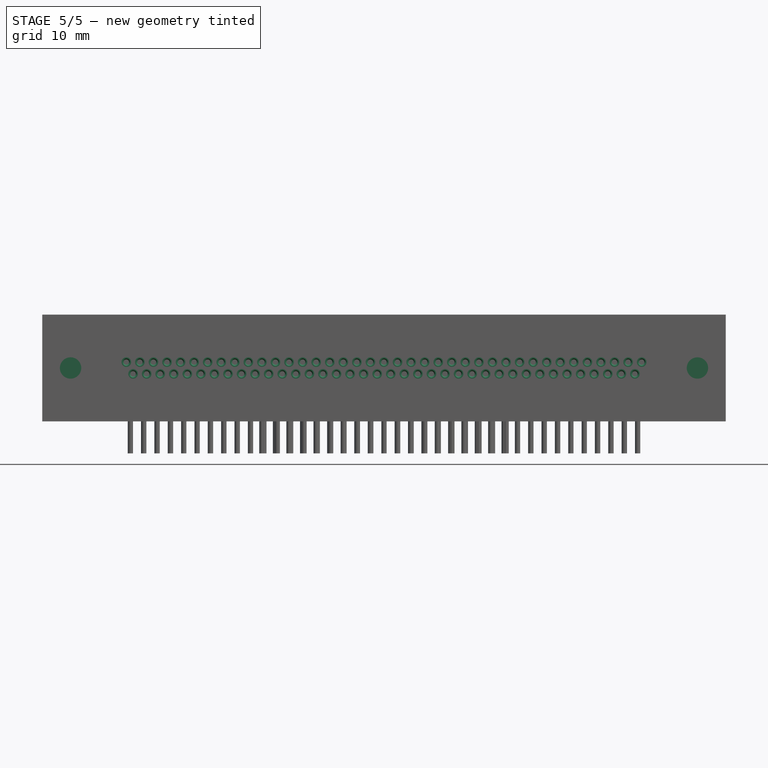
[diagram: stage 5 of 5 — front view after this stage's code; geometry added in this stage tinted green]
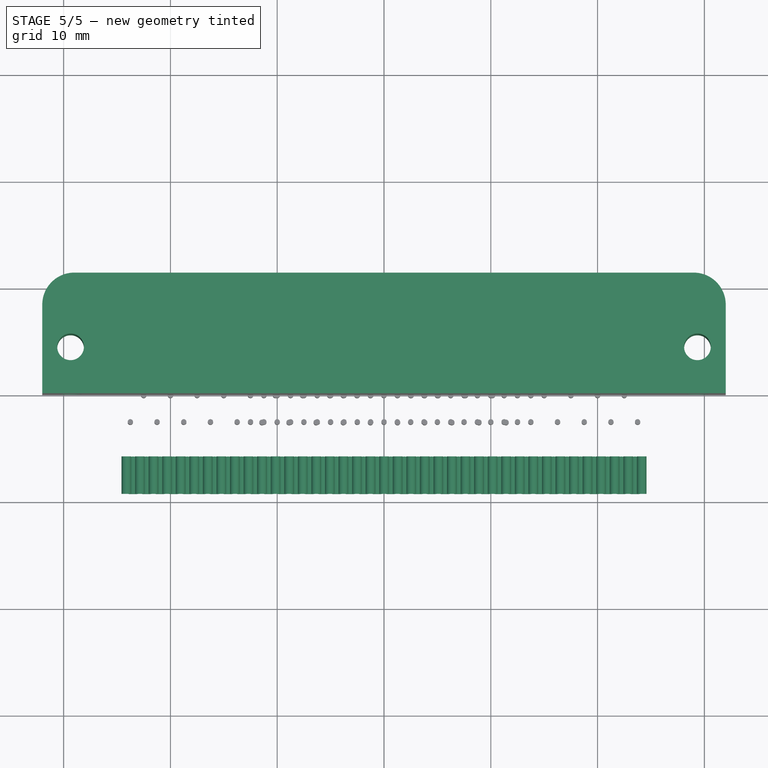
[diagram: stage 5 of 5 — top view after this stage's code; geometry added in this stage tinted green]
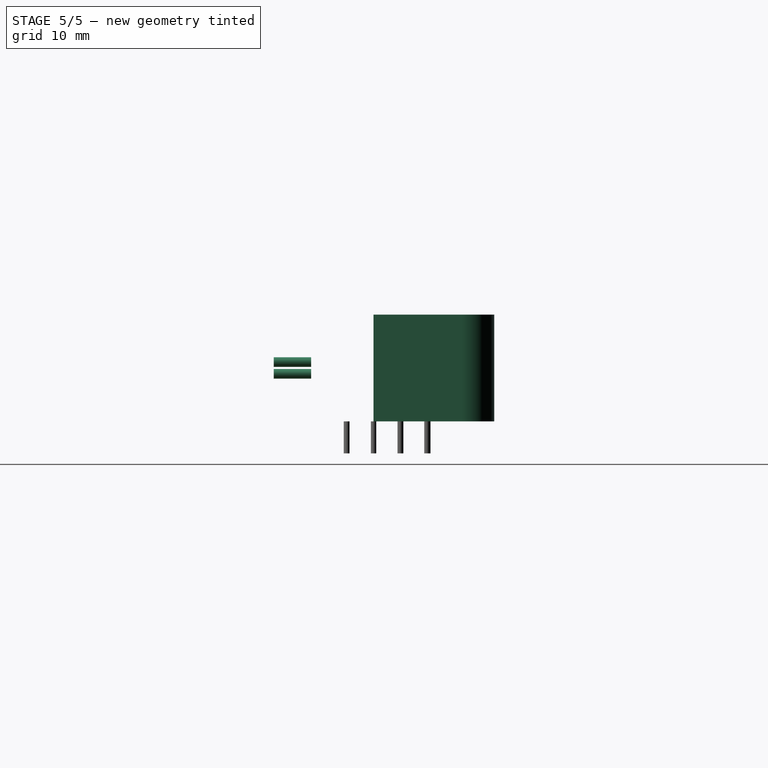
[diagram: stage 5 of 5 — right view after this stage's code; geometry added in this stage tinted green]
FEATURE [PartDesign::Body] Body002  label="solder_pin"
  AllowCompound = false
  Group = -> [ShapeBinder002,Sketch007,Pad003]
  Origin = -> Origin002
  Placement = pos=(0,-3.84,0) rot=(0,0,1;0rad)
  Tip = -> Pad003
  expr: .Placement.Base.y = <<param>>.Shift
FEATURE [PartDesign::Fillet] Fillet001
  Base = -> Pocket002 [Edge1,Edge2]
  BaseFeature = -> Pocket002
  Radius = 3
  SupportTransform = false
  Suppressed = false
  UseAllEdges = false
FEATURE [PartDesign::Body] Body001  label="flange"
  AllowCompound = false
  Group = -> [ShapeBinder,Sketch002,Pad001,Fillet,Sketch003,Pad002,ShapeBinder001,Sketch005,Pocket001,Offset2D,Pocket003,Chamfer]
  Origin = -> Origin001
  Placement = pos=(0,-3.84,0) rot=(0,0,1;0rad)
  Tip = -> Chamfer
  expr: .Placement.Base.y = <<param>>.Shift
FEATURE [PartDesign::ShapeBinder] ShapeBinder004
  Placement = pos=(0,4.9,0) rot=(0,0,1;0rad)
  Support = -> [Chamfer]
  TraceSupport = false
FEATURE [Sketcher::SketchObject] Sketch008
  ArcFitTolerance = 0
  AttachmentSupport = -> [ShapeBinder004]
  ExternalGeometry = -> [ShapeBinder004]
  FullyConstrained = true
  MakeInternals = false
  MapMode = 5
  Placement = pos=(0,-2,0) rot=(1,0,0;1.5708rad)
  expr: Constraints[14] = (<<param>>.JackPins - 1) * 1.27 mm / 2
  sketch-geometry (6):
    g0: LineSegment [constr] StartX=0.635 StartY=5.54993 StartZ=0 EndX=-0.635 EndY=5.54993 EndZ=0
    g1: LineSegment [constr] StartX=-0.635 StartY=5.54993 StartZ=0 EndX=0 EndY=4.45007 EndZ=0
    g2: LineSegment [constr] StartX=0.635 StartY=5.54993 StartZ=0 EndX=0 EndY=4.45007 EndZ=0
    g3: LineSegment [constr] StartX=0.3175 StartY=5 StartZ=0 EndX=-0.3175 EndY=5 EndZ=0
    g4: GeomPoint [constr] X=0 Y=5.54993 Z=0
    g5: LineSegment StartX=0.635 StartY=5.54993 StartZ=0 EndX=-23.495 EndY=5.54993 EndZ=0
  constraints (15):
    c: Coincident(g1,g0)
    c: Coincident(g2,g0)
    c: Coincident(g2,g1)
    c: PointOnObject(g1,g-2)
    c: Symmetric(g0,g0,g-2)
    c: Equal(g2,g0)
    c: PointOnObject(g3,g2)
    c: PointOnObject(g3,g1)
    c: PointOnObject(g4,g0)
    c: Symmetric(g4,g1,g3)
    c: Distance(g0) = 1.27
    c: Symmetric(g-4,g-3,g3)
    c: Coincident(g5,g0)
    c: Horizontal(g5)
    c: Distance(g5) = 24.13
FEATURE [Sketcher::SketchObject] Sketch009
  ArcFitTolerance = 0
  AttachmentSupport = -> [ShapeBinder004]
  ExternalGeometry = -> [ShapeBinder004]
  FullyConstrained = false
  MakeInternals = false
  MapMode = 5
  Placement = pos=(0,-2,0) rot=(1,0,0;1.5708rad)
  expr: Constraints[17] = 0.5 * (<<param>>.JackPins - 1) * 1.27 mm
  sketch-geometry (8):
    g0: Circle CenterX=-24.13 CenterY=5.54993 CenterZ=0 NormalX=0 NormalY=0 NormalZ=1 AngleXU=0 Radius=0.45
    g1: LineSegment [constr] StartX=0 StartY=5 StartZ=0 EndX=-7.80255 EndY=5 EndZ=0
    g2: LineSegment [constr] StartX=-0.635 StartY=5.54993 StartZ=0 EndX=0 EndY=4.45007 EndZ=0
    g3: LineSegment [constr] StartX=0 StartY=4.45007 StartZ=0 EndX=0.635 EndY=5.54993 EndZ=0
    g4: LineSegment [constr] StartX=0.635 StartY=5.54993 StartZ=0 EndX=-0.635 EndY=5.54993 EndZ=0
    g5: LineSegment [constr] StartX=0 StartY=5.54993 StartZ=0 EndX=0 EndY=5 EndZ=0
    g6: LineSegment [constr] StartX=0 StartY=5 StartZ=0 EndX=0 EndY=4.45007 EndZ=0
    g7: LineSegment [constr] StartX=0 StartY=5.54993 StartZ=0 EndX=-24.13 EndY=5.54993 EndZ=0
  constraints (19):
    c: Diameter(g0) = 0.9
    c: PointOnObject(g1,g-2)
    c: Symmetric(g-4,g-3,g1)
    c: Coincident(g3,g2)
    c: Coincident(g4,g3)
    c: Coincident(g4,g2)
    c: PointOnObject(g2,g-2)
    c: Symmetric(g2,g3,g-2)
    c: Equal(g4,g2)
    c: Distance(g4) = 1.27
    c: Symmetric(g4,g4,g5)
    c: Coincident(g5,g1)
    c: Coincident(g6,g1)
    c: Coincident(g6,g2)
    c: Equal(g5,g6)
    c: Coincident(g7,g5)
    c: Horizontal(g7)
    c: Distance(g7) = 24.13
    c: Coincident(g7,g0)
FEATURE [PartDesign::Pad] Pad004  label="Pad008"
  Direction = (0,-1,2e-16)
  Length = 3.5
  Length2 = 10
  Placement = pos=(0,4.9,0) rot=(0,0,1;0rad)
  Profile = -> Sketch009
  ReferenceAxis = -> Sketch009 [N_Axis]
  Suppressed = false
  Type = 0
FEATURE [Sketcher::SketchObject] Sketch010
  ArcFitTolerance = 0
  AttachmentSupport = -> [Pad004]
  ExternalGeometry = -> [Pad004]
  FullyConstrained = true
  MakeInternals = false
  MapMode = 5
  Placement = pos=(0,-5.5,3e-15) rot=(1,0,0;1.5708rad)
  sketch-geometry (1):
    g0: Circle CenterX=-24.13 CenterY=5.54993 CenterZ=0 NormalX=0 NormalY=0 NormalZ=1 AngleXU=0 Radius=0.25
  constraints (2):
    c: Coincident(g0,g-3)
    c: Diameter(g0) = 0.5
FEATURE [PartDesign::Pocket] Pocket004
  BaseFeature = -> Pad004
  Direction = (0,1,-2e-16)
  Length = 5
  Length2 = 5
  Placement = pos=(0,4.9,0) rot=(0,0,1;0rad)
  Profile = -> Sketch010
  ReferenceAxis = -> Sketch010 [N_Axis]
  Suppressed = false
  Type = 1
FEATURE [PartDesign::Chamfer] Chamfer001
  Angle = 45
  Base = -> Pocket004 [Edge5]
  BaseFeature = -> Pocket004
  ChamferType = 0
  FlipDirection = false
  Placement = pos=(0,4.9,0) rot=(0,0,1;0rad)
  Size = 0.1
  Size2 = 1
  SupportTransform = false
  Suppressed = false
  UseAllEdges = false
FEATURE [PartDesign::Body] Body003  label="jack_pin_h"
  AllowCompound = false
  Group = -> [ShapeBinder004,Sketch008,Sketch009,Pad004,Sketch010,Pocket004,Chamfer001]
  Origin = -> Origin003
  Placement = pos=(0,-3.84,0) rot=(0,0,1;0rad)
  Tip = -> Chamfer001
  expr: .Placement.Base.y = <<param>>.Shift
FEATURE [Part::FeaturePython] Clone  label="jack_pin_l"  # Draft clone (typed FeaturePython)
  AttacherType = Attacher::AttachEngine3D
  Fuse = false
  Objects = -> [Body003]
  Placement = pos=(0.635,-3.84,-1.09985) rot=(0,0,1;0rad)
  Scale = (1,1,1)
  expr: .Placement.Base.y = <<param>>.Shift
FEATURE [Part::FeaturePython] Array  label="array_jack_h"  # Draft array (typed FeaturePython)
  AlwaysSyncPlacement = false
  Angle = 360
  ArrayType = 0
  Axis = (0,0,1)
  Base = -> Body003
  Center = (0,0,0)
  Count = 39
  ExpandArray = false
  Fuse = false
  IntervalAxis = (0,0,0)
  IntervalX = (1.27,0,0)
  IntervalY = (0,100,0)
  IntervalZ = (0,0,100)
  NumberCircles = 3
  NumberPolar = 5
  NumberX = 39
  NumberY = 1
  NumberZ = 1
  PlacementList = 39 placements: arithmetic series from (0,-3.84,0) step (1.27,0,0) to (48.26,-3.84,0)
  RadialDistance = 50
  ScaleList = (39) [(1,1,1),(1,1,1),(1,1,1),(1,1,1),(1,1,1),(1,1,1),(1,1,1),(1,1,1),(1,1,1),(1,1,1),(1,1,1),(1,1,1),(1,1,1),(1,1,1),(1,1,1),(1,1,1),(1,1,1),(1,1,1),+21 more]
  Symmetry = 1
  TangentialDistance = 25
  expr: NumberX = <<param>>.JackPins
FEATURE [Part::FeaturePython] Array001  label="array_jack_l"  # Draft array (typed FeaturePython)
  AlwaysSyncPlacement = false
  Angle = 360
  ArrayType = 0
  Axis = (0,0,1)
  Base = -> Clone
  Center = (0,0,0)
  Count = 38
  ExpandArray = false
  Fuse = false
  IntervalAxis = (0,0,0)
  IntervalX = (1.27,0,0)
  IntervalY = (0,100,0)
  IntervalZ = (0,0,100)
  NumberCircles = 3
  NumberPolar = 5
  NumberX = 38
  NumberY = 1
  NumberZ = 1
  PlacementList = 38 placements: arithmetic series from (0.635,-3.84,-1.09985) step (1.27,0,0) to (47.625,-3.84,-1.09985)
  RadialDistance = 50
  ScaleList = (38) [(1,1,1),(1,1,1),(1,1,1),(1,1,1),(1,1,1),(1,1,1),(1,1,1),(1,1,1),(1,1,1),(1,1,1),(1,1,1),(1,1,1),(1,1,1),(1,1,1),(1,1,1),(1,1,1),(1,1,1),(1,1,1),+20 more]
  Symmetry = 1
  TangentialDistance = 25
  expr: NumberX = <<param>>.JackPins - 1
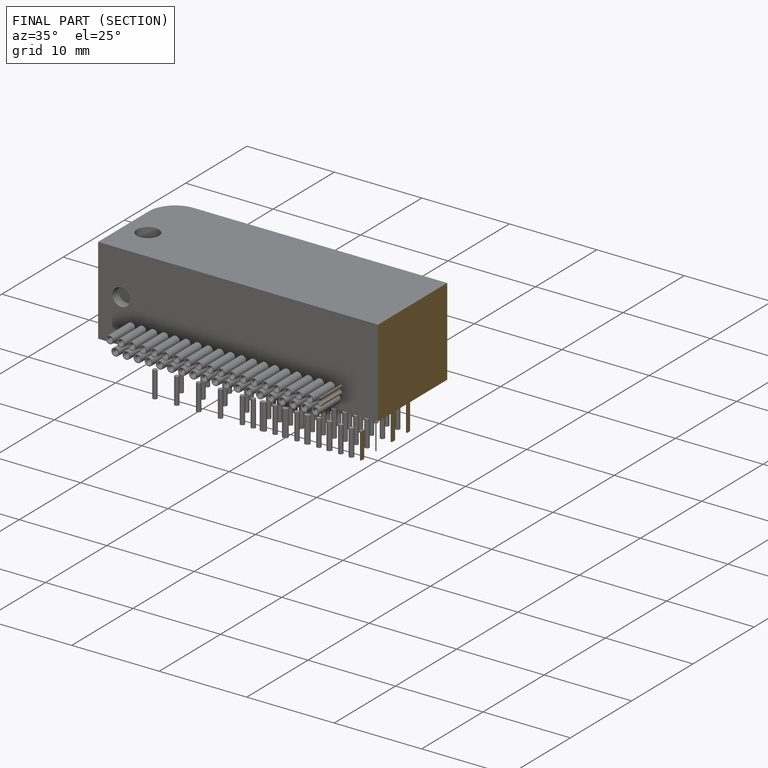
[diagram: finished part — half-section view (interior)]
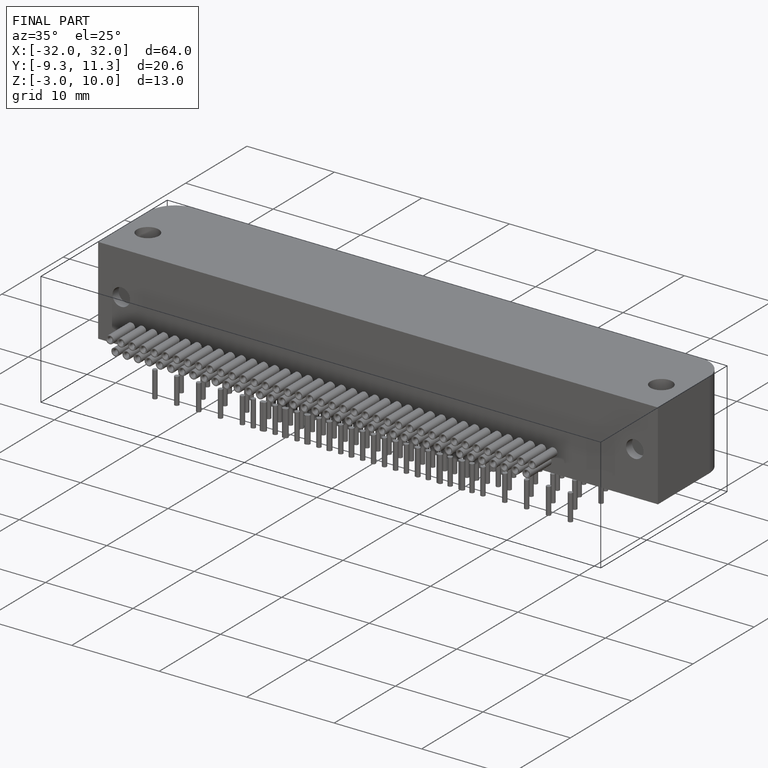
[diagram: finished part — iso view with bounding-box wireframe]
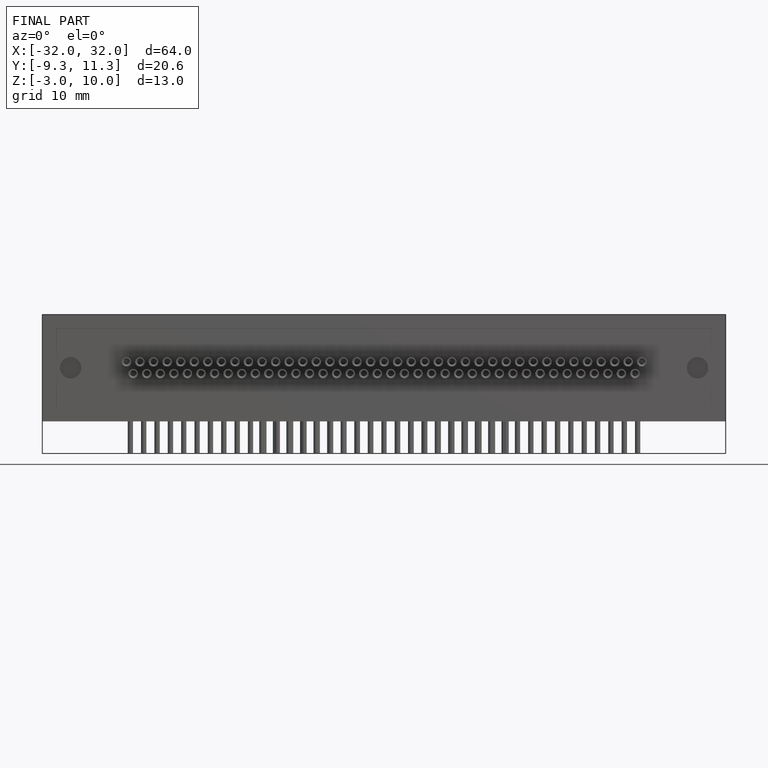
[diagram: finished part — front view with bounding-box wireframe]
